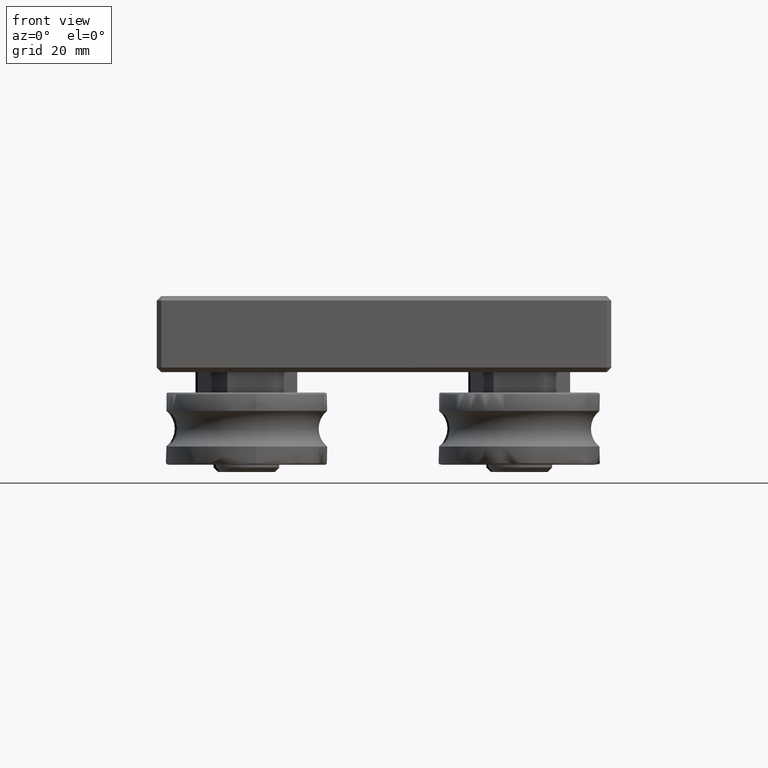
[diagram: clean part render]
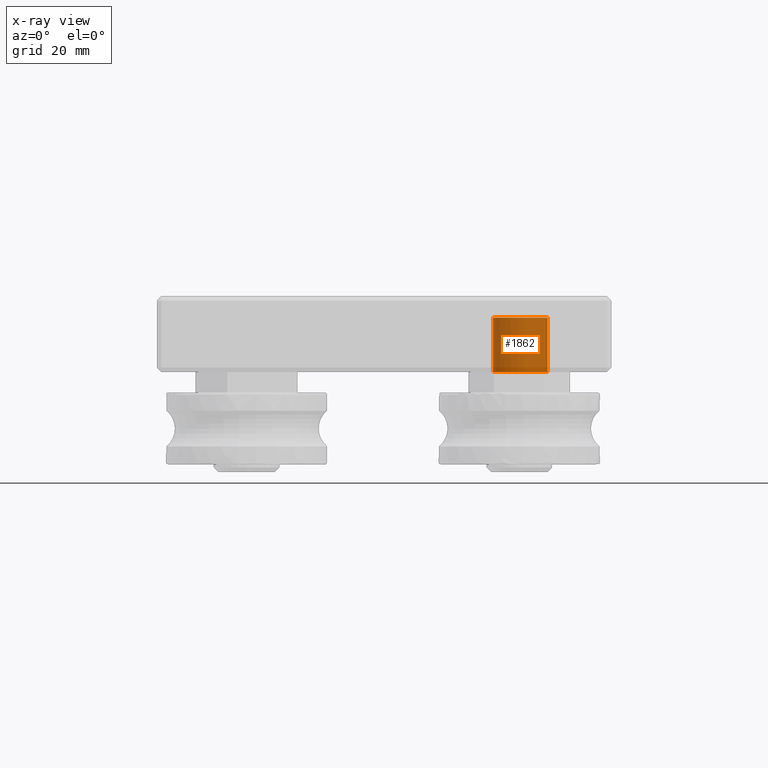
[diagram: x-ray — body ghosted, one internal face saturated and labeled with its STEP entity id]
A machine part, front view, then the same camera in x-ray: the body is ghosted and one INTERNAL B-rep face — a face not visible from any outside direction — is saturated and labeled: STEP entity #1862.
In plain terms, the highlighted cylindrical surface (bore or boss wall) has radius 6 mm, axis along (0, 0, 1).
Its self-contained STEP definition (entity closure, byte-faithful):
#171=CYLINDRICAL_SURFACE('',#2086,6.);
#230=CIRCLE('',#2073,6.);
#236=CIRCLE('',#2084,6.);
#353=FACE_OUTER_BOUND('',#492,.T.);
#492=EDGE_LOOP('',(#1390,#1391,#1392,#1393));
#647=LINE('',#3004,#779);
#779=VECTOR('',#2423,6.);
#893=VERTEX_POINT('',#2978);
#899=VERTEX_POINT('',#2999);
#1064=EDGE_CURVE('',#893,#893,#230,.T.);
#1074=EDGE_CURVE('',#899,#899,#236,.T.);
#1076=EDGE_CURVE('',#899,#893,#647,.T.);
#1390=ORIENTED_EDGE('',*,*,#1074,.T.);
#1391=ORIENTED_EDGE('',*,*,#1076,.T.);
#1392=ORIENTED_EDGE('',*,*,#1064,.F.);
#1393=ORIENTED_EDGE('',*,*,#1076,.F.);
#1862=ADVANCED_FACE('',(#353),#171,.F.);
#2073=AXIS2_PLACEMENT_3D('',#2979,#2390,#2391);
#2084=AXIS2_PLACEMENT_3D('',#3000,#2416,#2417);
#2086=AXIS2_PLACEMENT_3D('',#3003,#2421,#2422);
#2390=DIRECTION('center_axis',(0.,-1.,0.));
#2391=DIRECTION('ref_axis',(1.,0.,0.));
#2416=DIRECTION('center_axis',(0.,-1.,0.));
#2417=DIRECTION('ref_axis',(1.,0.,0.));
#2421=DIRECTION('center_axis',(0.,-1.,0.));
#2422=DIRECTION('ref_axis',(1.,0.,0.));
#2423=DIRECTION('',(0.,1.,0.));
#2978=CARTESIAN_POINT('',(-36.,16.75,-41.5));
#2979=CARTESIAN_POINT('Origin',(-30.,16.75,-41.5));
#2999=CARTESIAN_POINT('',(-36.,4.8,-41.5));
#3000=CARTESIAN_POINT('Origin',(-30.,4.8,-41.5));
#3003=CARTESIAN_POINT('Origin',(-30.,157.100485358894,-41.5));
#3004=CARTESIAN_POINT('',(-36.,157.100485358894,-41.5));